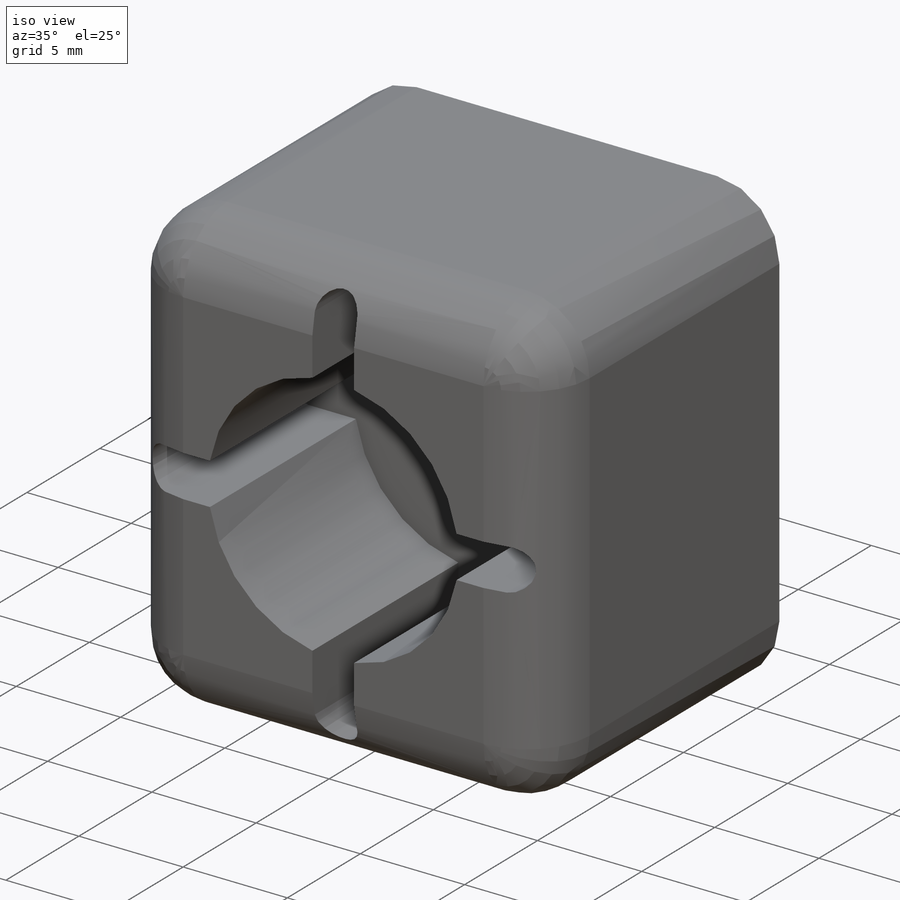
[diagram: iso view]
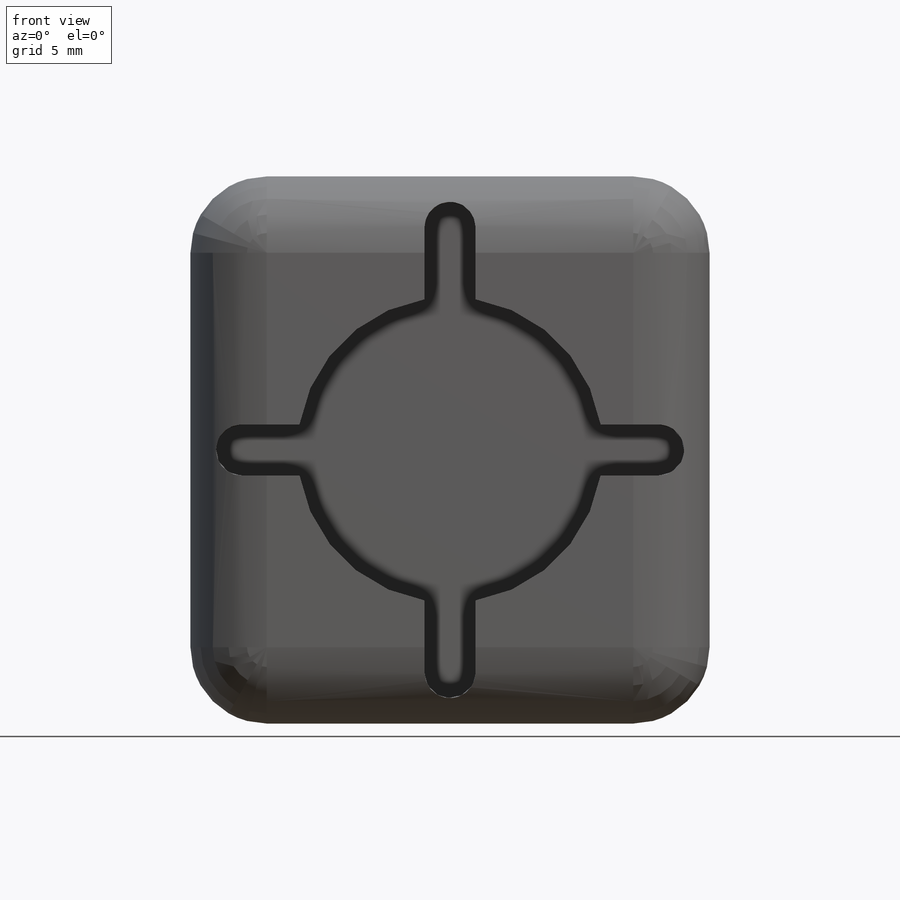
[diagram: front view]
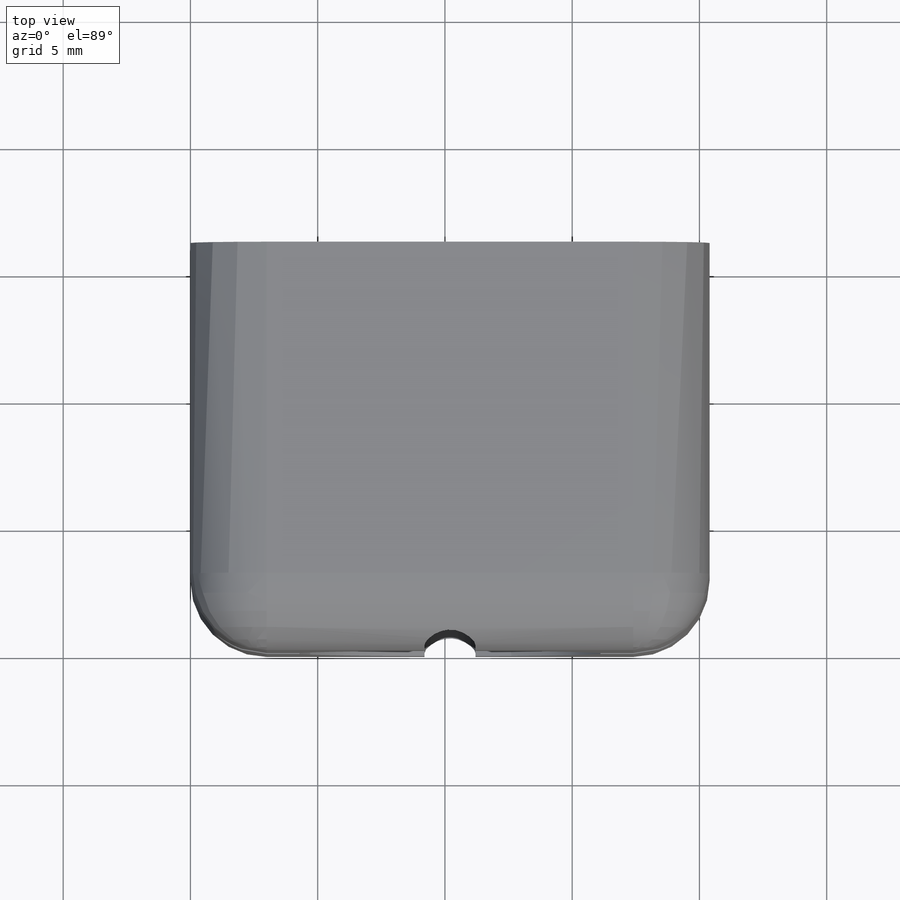
[diagram: top view]
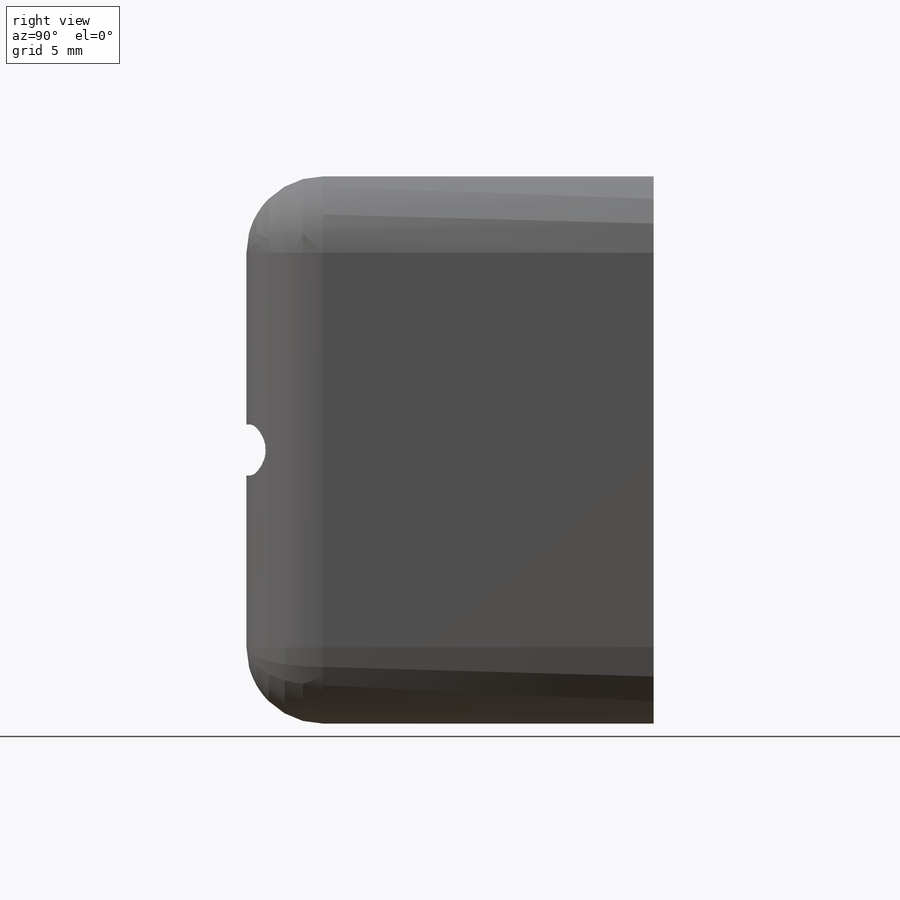
[diagram: right view]
SOLIDWORKS PART (.sldprt)
format: sldprt  version: not decoded by parser v0  size: 276,992 bytes
history: native  units: mm
features: plane x3, sketch x2, material x1, extrude x1, cut_extrude x1, fillet x1 (+11 scaffold rows collapsed)
feature tree (20):
  scaffold x11  (default folders/planes/origin — collapsed)
  material  "PVC Rigid"
  plane  "Body alignment"  Offset=6mm
  plane  "Vertical center"  Offset=10.2mm
  plane  "Horizontal plane"  Offset=10.75mm
  sketch  "Sketch1"  dims[D1=20.4mm D2=21.5mm]
  extrude  "Extrude1"  Depth=16mm
  sketch  "Sketch11"  dims[c1.D1=12.0mm c1.D2=10.75mm c1.D3=2.0mm c1.D4=9.75mm c1.D5=2.0mm c1.D6=2.0mm c1.D7=9.2mm c2.D6=2.0mm c2.D8=2.0mm c2.D9=2.0mm c2.D10=2.0mm]
  cut_extrude  "Extrude10"  Depth=10mm
  fillet  "Fillet8"  Radius=3mm
decode coverage: 5 of 5 modeling features carry decoded parameters
note: suppression state not decoded; provenance and decode notes live in map.json
